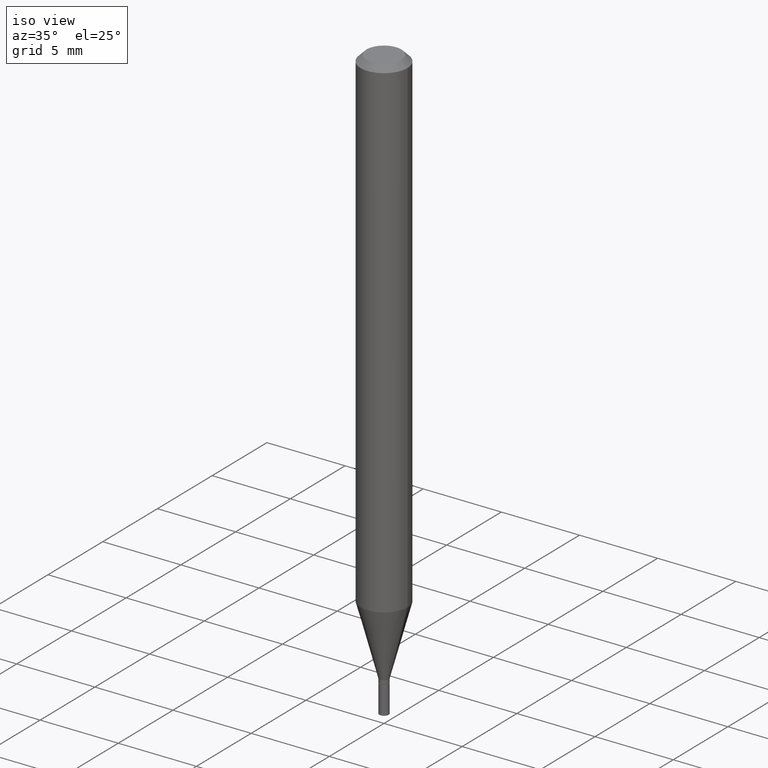
[diagram: clean part render]
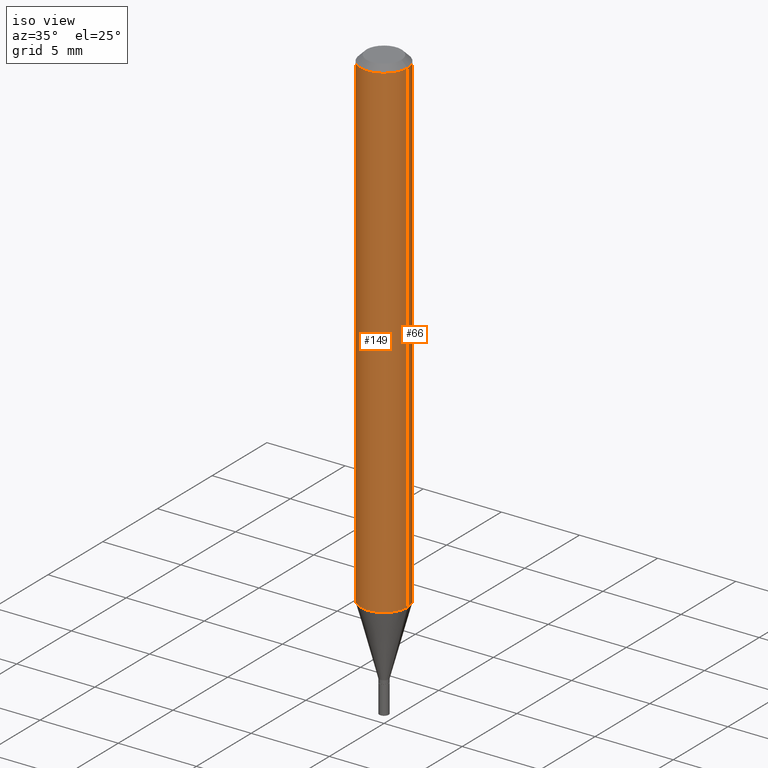
[diagram: same view with one multi-face feature highlighted, each face labeled with its STEP entity id]
A machine part, iso view. The highlighted faces form ONE feature: a constant-radius fillet chain: 2 tangent blend faces with common blend radius 1.4999 mm. The faces share edges in the B-rep.
Their STEP definitions:
[1] entity #149 (Cylinder):
#10 = VERTEX_POINT ( 'NONE', #85 ) ;
#18 = DIRECTION ( 'NONE',  ( 1.000000000000000000, -6.982962677686266711E-15, 0.000000000000000000 ) ) ;
#33 = ORIENTED_EDGE ( 'NONE', *, *, #249, .F. ) ;
#35 = CARTESIAN_POINT ( 'NONE',  ( -0.05904999999999999832, -3.919499955787072456E-15, -1.242760599342371153 ) ) ;
#41 = AXIS2_PLACEMENT_3D ( 'NONE', #199, #341, #18 ) ;
#43 = CIRCLE ( 'NONE', #453, 0.05904999999999999832 ) ;
#48 = CARTESIAN_POINT ( 'NONE',  ( 3.039132279247712903E-29, -4.339075441253411949E-15, -1.242760599342371153 ) ) ;
#60 = EDGE_LOOP ( 'NONE', ( #33, #61, #268, #367 ) ) ;
#61 = ORIENTED_EDGE ( 'NONE', *, *, #280, .T. ) ;
#62 = CARTESIAN_POINT ( 'NONE',  ( -0.05904999999999999832, -1.776148345201690613E-15, -0.01499999999999999944 ) ) ;
#85 = CARTESIAN_POINT ( 'NONE',  ( 0.05904999999999999832, -4.647161662000212105E-16, -0.01499999999999999944 ) ) ;
#91 = CARTESIAN_POINT ( 'NONE',  ( 0.05904999999999999832, -4.123439461173740327E-16, 2.879382386107500220E-30 ) ) ;
#114 = FACE_OUTER_BOUND ( 'NONE', #60, .T. ) ;
#118 = DIRECTION ( 'NONE',  ( -2.445468806185136597E-29, 3.491481338843145583E-15, 1.000000000000000000 ) ) ;
#129 = DIRECTION ( 'NONE',  ( -2.445468806185136877E-29, 3.491481338843145188E-15, 1.000000000000000000 ) ) ;
#146 = CIRCLE ( 'NONE', #41, 0.05904999999999999832 ) ;
#149 = ADVANCED_FACE ( 'NONE', ( #114 ), #198, .T. ) ;
#156 = EDGE_CURVE ( 'NONE', #327, #10, #340, .T. ) ;
#185 = CARTESIAN_POINT ( 'NONE',  ( 0.05904999999999999832, -4.751419387370785291E-15, -1.242760599342371153 ) ) ;
#198 = CYLINDRICAL_SURFACE ( 'NONE', #240, 0.05904999999999999832 ) ;
#199 = CARTESIAN_POINT ( 'NONE',  ( 3.668203209277705088E-31, -5.237222008264718399E-17, -0.01499999999999999944 ) ) ;
#211 = VECTOR ( 'NONE', #129, 39.37007874015748143 ) ;
#234 = DIRECTION ( 'NONE',  ( 1.000000000000000000, -6.982962677686265133E-15, 0.000000000000000000 ) ) ;
#240 = AXIS2_PLACEMENT_3D ( 'NONE', #274, #118, #338 ) ;
#249 = EDGE_CURVE ( 'NONE', #410, #409, #464, .T. ) ;
#268 = ORIENTED_EDGE ( 'NONE', *, *, #156, .T. ) ;
#274 = CARTESIAN_POINT ( 'NONE',  ( 0.000000000000000000, 0.000000000000000000, 0.000000000000000000 ) ) ;
#280 = EDGE_CURVE ( 'NONE', #410, #327, #43, .T. ) ;
#312 = EDGE_CURVE ( 'NONE', #409, #10, #146, .T. ) ;
#327 = VERTEX_POINT ( 'NONE', #185 ) ;
#338 = DIRECTION ( 'NONE',  ( 1.000000000000000000, -6.982962677686266711E-15, 4.876176775795936353E-29 ) ) ;
#340 = LINE ( 'NONE', #91, #211 ) ;
#341 = DIRECTION ( 'NONE',  ( -2.445468806185136597E-29, 3.491481338843145583E-15, 1.000000000000000000 ) ) ;
#343 = DIRECTION ( 'NONE',  ( -2.445468806185136597E-29, 3.491481338843145583E-15, 1.000000000000000000 ) ) ;
#367 = ORIENTED_EDGE ( 'NONE', *, *, #312, .F. ) ;
#379 = CARTESIAN_POINT ( 'NONE',  ( -0.05904999999999999832, 4.195754854663391478E-16, -2.904631170795521892E-30 ) ) ;
#409 = VERTEX_POINT ( 'NONE', #62 ) ;
#410 = VERTEX_POINT ( 'NONE', #35 ) ;
#428 = DIRECTION ( 'NONE',  ( -2.445468806185136877E-29, 3.491481338843145188E-15, 1.000000000000000000 ) ) ;
#453 = AXIS2_PLACEMENT_3D ( 'NONE', #48, #343, #234 ) ;
#463 = VECTOR ( 'NONE', #428, 39.37007874015748143 ) ;
#464 = LINE ( 'NONE', #379, #463 ) ;
[2] entity #66 (Cylinder):
#3 = CARTESIAN_POINT ( 'NONE',  ( 3.668203209277705088E-31, -5.237222008264718399E-17, -0.01499999999999999944 ) ) ;
#10 = VERTEX_POINT ( 'NONE', #85 ) ;
#12 = CIRCLE ( 'NONE', #111, 0.05904999999999999832 ) ;
#35 = CARTESIAN_POINT ( 'NONE',  ( -0.05904999999999999832, -3.919499955787072456E-15, -1.242760599342371153 ) ) ;
#50 = CARTESIAN_POINT ( 'NONE',  ( 0.000000000000000000, 0.000000000000000000, 0.000000000000000000 ) ) ;
#62 = CARTESIAN_POINT ( 'NONE',  ( -0.05904999999999999832, -1.776148345201690613E-15, -0.01499999999999999944 ) ) ;
#66 = ADVANCED_FACE ( 'NONE', ( #425 ), #358, .T. ) ;
#67 = DIRECTION ( 'NONE',  ( -2.445468806185136597E-29, 3.491481338843145583E-15, 1.000000000000000000 ) ) ;
#71 = EDGE_CURVE ( 'NONE', #10, #409, #12, .T. ) ;
#85 = CARTESIAN_POINT ( 'NONE',  ( 0.05904999999999999832, -4.647161662000212105E-16, -0.01499999999999999944 ) ) ;
#91 = CARTESIAN_POINT ( 'NONE',  ( 0.05904999999999999832, -4.123439461173740327E-16, 2.879382386107500220E-30 ) ) ;
#93 = ORIENTED_EDGE ( 'NONE', *, *, #401, .T. ) ;
#111 = AXIS2_PLACEMENT_3D ( 'NONE', #3, #165, #133 ) ;
#129 = DIRECTION ( 'NONE',  ( -2.445468806185136877E-29, 3.491481338843145188E-15, 1.000000000000000000 ) ) ;
#133 = DIRECTION ( 'NONE',  ( 1.000000000000000000, -6.982962677686266711E-15, 0.000000000000000000 ) ) ;
#141 = ORIENTED_EDGE ( 'NONE', *, *, #71, .F. ) ;
#143 = ORIENTED_EDGE ( 'NONE', *, *, #249, .T. ) ;
#153 = AXIS2_PLACEMENT_3D ( 'NONE', #50, #167, #316 ) ;
#156 = EDGE_CURVE ( 'NONE', #327, #10, #340, .T. ) ;
#165 = DIRECTION ( 'NONE',  ( -2.445468806185136597E-29, 3.491481338843145583E-15, 1.000000000000000000 ) ) ;
#167 = DIRECTION ( 'NONE',  ( -2.445468806185136597E-29, 3.491481338843145583E-15, 1.000000000000000000 ) ) ;
#171 = DIRECTION ( 'NONE',  ( 1.000000000000000000, -6.982962677686265133E-15, 0.000000000000000000 ) ) ;
#185 = CARTESIAN_POINT ( 'NONE',  ( 0.05904999999999999832, -4.751419387370785291E-15, -1.242760599342371153 ) ) ;
#211 = VECTOR ( 'NONE', #129, 39.37007874015748143 ) ;
#239 = ORIENTED_EDGE ( 'NONE', *, *, #156, .F. ) ;
#249 = EDGE_CURVE ( 'NONE', #410, #409, #464, .T. ) ;
#316 = DIRECTION ( 'NONE',  ( 1.000000000000000000, -6.982962677686266711E-15, 4.876176775795936353E-29 ) ) ;
#327 = VERTEX_POINT ( 'NONE', #185 ) ;
#340 = LINE ( 'NONE', #91, #211 ) ;
#358 = CYLINDRICAL_SURFACE ( 'NONE', #153, 0.05904999999999999832 ) ;
#371 = EDGE_LOOP ( 'NONE', ( #93, #143, #141, #239 ) ) ;
#372 = CIRCLE ( 'NONE', #430, 0.05904999999999999832 ) ;
#379 = CARTESIAN_POINT ( 'NONE',  ( -0.05904999999999999832, 4.195754854663391478E-16, -2.904631170795521892E-30 ) ) ;
#401 = EDGE_CURVE ( 'NONE', #327, #410, #372, .T. ) ;
#409 = VERTEX_POINT ( 'NONE', #62 ) ;
#410 = VERTEX_POINT ( 'NONE', #35 ) ;
#425 = FACE_OUTER_BOUND ( 'NONE', #371, .T. ) ;
#428 = DIRECTION ( 'NONE',  ( -2.445468806185136877E-29, 3.491481338843145188E-15, 1.000000000000000000 ) ) ;
#430 = AXIS2_PLACEMENT_3D ( 'NONE', #439, #67, #171 ) ;
#439 = CARTESIAN_POINT ( 'NONE',  ( 3.039132279247712903E-29, -4.339075441253411949E-15, -1.242760599342371153 ) ) ;
#463 = VECTOR ( 'NONE', #428, 39.37007874015748143 ) ;
#464 = LINE ( 'NONE', #379, #463 ) ;